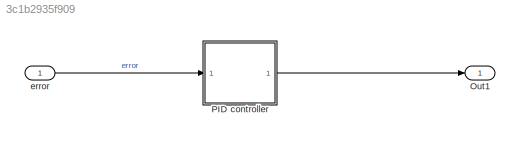
MODEL slx_3c1b2935f909
KIND model
CONFIG AbsTol = auto
CONFIG EnableMultiTasking = off
CONFIG FixedStep = auto
CONFIG MaxStep = auto
CONFIG MinStep = auto
CONFIG RelTol = 1e-3
CONFIG SampleTimeConstraint = Unconstrained
CONFIG SolverName = VariableStepAuto
CONFIG StartTime = 0.0
CONFIG StopTime = 120
BLOCK [Outport] Out1
  OutDataTypeStr = double
  PortDimensions = 1
  SampleTime = 0
  SamplingMode = Sample based
  SignalType = real
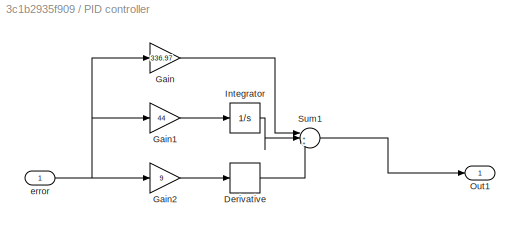
BLOCK [SubSystem] PID controller
  Ports = [1, 1]
  RequestExecContextInheritance = off
  TreatAsAtomicUnit = on
BLOCK [Derivative] PID controller/Derivative
BLOCK [Gain] PID controller/Gain
  Gain = 336.97
BLOCK [Gain] PID controller/Gain1
  Gain = 44
BLOCK [Gain] PID controller/Gain2
  Gain = 9
BLOCK [Integrator] PID controller/Integrator
  Ports = [1, 1]
BLOCK [Outport] PID controller/Out1
BLOCK [Sum] PID controller/Sum1
  Inputs = |+++
  Ports = [3, 1]
BLOCK [Inport] PID controller/error
BLOCK [Inport] error
  OutDataTypeStr = double
  PortDimensions = 1
  SampleTime = 0
  SamplingMode = Sample based
  SignalType = real
LINE PID controller/Derivative:1 -> PID controller/Sum1:3
LINE PID controller/Gain1:1 -> PID controller/Integrator:1
LINE PID controller/Gain2:1 -> PID controller/Derivative:1
LINE PID controller/Gain:1 -> PID controller/Sum1:1
LINE PID controller/Integrator:1 -> PID controller/Sum1:2
LINE PID controller/Sum1:1 -> PID controller/Out1:1
NET PID controller/error:1 -> PID controller/Gain1:1, PID controller/Gain2:1, PID controller/Gain:1
LINE PID controller:1 -> Out1:1
LINE error:1 -> PID controller:1
note: NET lines group one-source signal fan-out (src -> all destinations, sorted); 1:1 wires keep LINE
